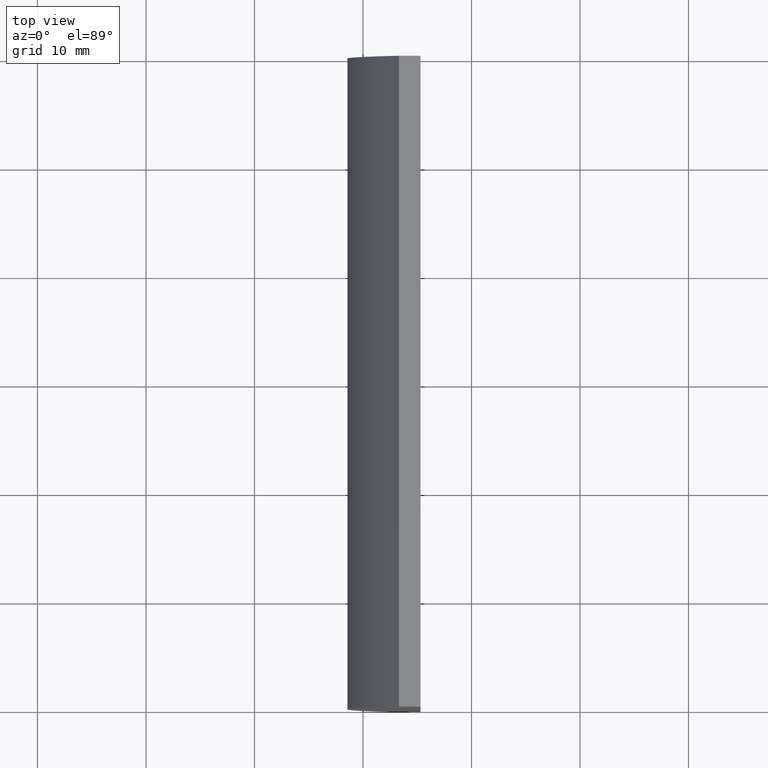
[diagram: clean part render]
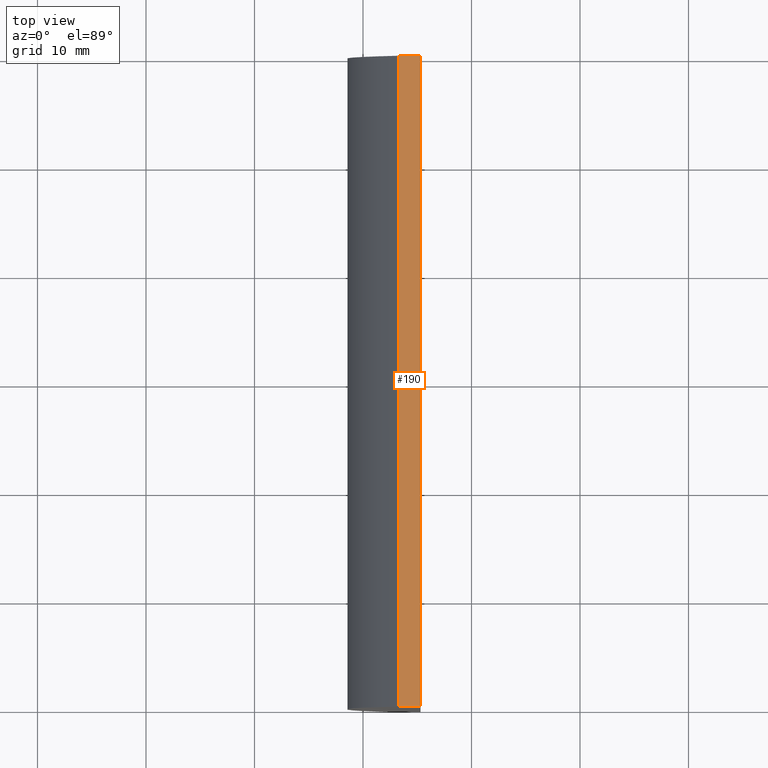
[diagram: same view with one face highlighted and labeled with its STEP entity id]
A machine part, top view. The second image highlights one B-rep face of the part: STEP entity #190.
In plain terms, the highlighted planar face has unit normal (0, 0, -1).
Its self-contained STEP definition (entity closure, byte-faithful):
#16 = LINE ( 'NONE', #46, #62 ) ;
#27 = CARTESIAN_POINT ( 'NONE',  ( -14.69479566514873300, 60.00000000000000000, 15.00000000000000000 ) ) ;
#30 = DIRECTION ( 'NONE',  ( 1.000000000000000000, 0.0000000000000000000, 0.0000000000000000000 ) ) ;
#31 = LINE ( 'NONE', #129, #64 ) ;
#35 = DIRECTION ( 'NONE',  ( 0.0000000000000000000, 0.0000000000000000000, -1.000000000000000000 ) ) ;
#46 = CARTESIAN_POINT ( 'NONE',  ( -14.69479566514873300, 60.00000000000000000, 15.00000000000000000 ) ) ;
#50 = AXIS2_PLACEMENT_3D ( 'NONE', #128, #35, #109 ) ;
#62 = VECTOR ( 'NONE', #123, 1000.000000000000000 ) ;
#64 = VECTOR ( 'NONE', #30, 1000.000000000000000 ) ;
#65 = VERTEX_POINT ( 'NONE', #73 ) ;
#70 = DIRECTION ( 'NONE',  ( -0.0000000000000000000, -1.000000000000000000, -0.0000000000000000000 ) ) ;
#72 = FACE_OUTER_BOUND ( 'NONE', #176, .T. ) ;
#73 = CARTESIAN_POINT ( 'NONE',  ( -16.69764582848766200, 60.00000000000000000, 15.00000000000000000 ) ) ;
#83 = DIRECTION ( 'NONE',  ( 1.000000000000000000, 0.0000000000000000000, 0.0000000000000000000 ) ) ;
#97 = VECTOR ( 'NONE', #83, 1000.000000000000000 ) ;
#98 = EDGE_CURVE ( 'NONE', #65, #168, #124, .T. ) ;
#100 = CARTESIAN_POINT ( 'NONE',  ( -16.69764582848766200, 60.00000000000000000, 15.00000000000000000 ) ) ;
#106 = EDGE_CURVE ( 'NONE', #65, #199, #185, .T. ) ;
#109 = DIRECTION ( 'NONE',  ( -1.000000000000000000, 0.0000000000000000000, -0.0000000000000000000 ) ) ;
#113 = ORIENTED_EDGE ( 'NONE', *, *, #157, .T. ) ;
#123 = DIRECTION ( 'NONE',  ( -0.0000000000000000000, -1.000000000000000000, -0.0000000000000000000 ) ) ;
#124 = LINE ( 'NONE', #158, #203 ) ;
#125 = PLANE ( 'NONE',  #50 ) ;
#128 = CARTESIAN_POINT ( 'NONE',  ( -16.69764582848766200, 60.00000000000000000, 15.00000000000000000 ) ) ;
#129 = CARTESIAN_POINT ( 'NONE',  ( -16.69764582848766200, 0.0000000000000000000, 15.00000000000000000 ) ) ;
#138 = ORIENTED_EDGE ( 'NONE', *, *, #106, .F. ) ;
#142 = EDGE_CURVE ( 'NONE', #199, #186, #16, .T. ) ;
#150 = ORIENTED_EDGE ( 'NONE', *, *, #142, .F. ) ;
#157 = EDGE_CURVE ( 'NONE', #168, #186, #31, .T. ) ;
#158 = CARTESIAN_POINT ( 'NONE',  ( -16.69764582848766200, 60.00000000000000000, 15.00000000000000000 ) ) ;
#163 = CARTESIAN_POINT ( 'NONE',  ( -16.69764582848766200, 0.0000000000000000000, 15.00000000000000000 ) ) ;
#165 = ORIENTED_EDGE ( 'NONE', *, *, #98, .T. ) ;
#168 = VERTEX_POINT ( 'NONE', #163 ) ;
#176 = EDGE_LOOP ( 'NONE', ( #113, #150, #138, #165 ) ) ;
#184 = CARTESIAN_POINT ( 'NONE',  ( -14.69479566514873300, 0.0000000000000000000, 15.00000000000000000 ) ) ;
#185 = LINE ( 'NONE', #100, #97 ) ;
#186 = VERTEX_POINT ( 'NONE', #184 ) ;
#190 = ADVANCED_FACE ( 'NONE', ( #72 ), #125, .F. ) ;
#199 = VERTEX_POINT ( 'NONE', #27 ) ;
#203 = VECTOR ( 'NONE', #70, 1000.000000000000000 ) ;